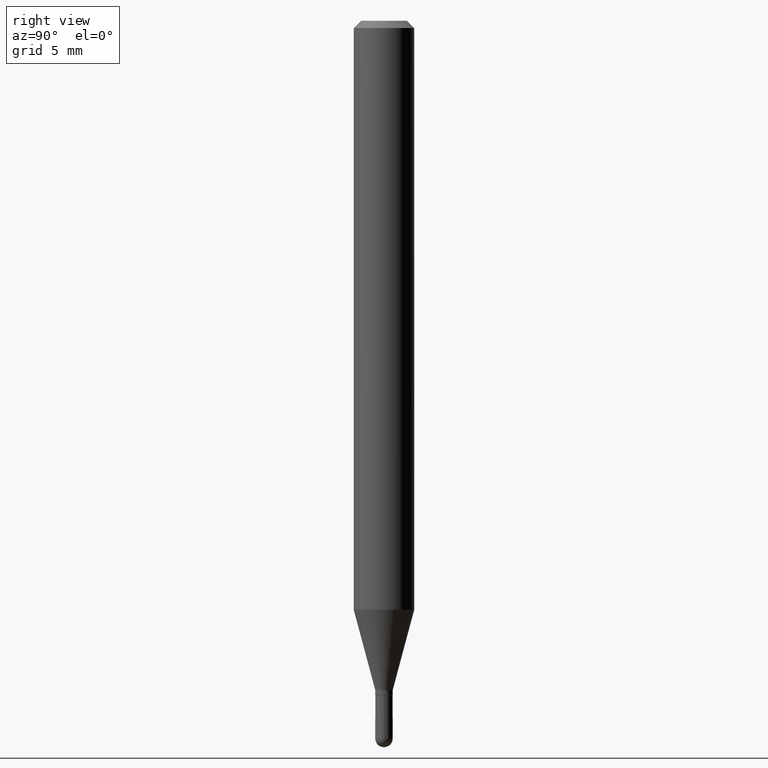
[diagram: clean part render]
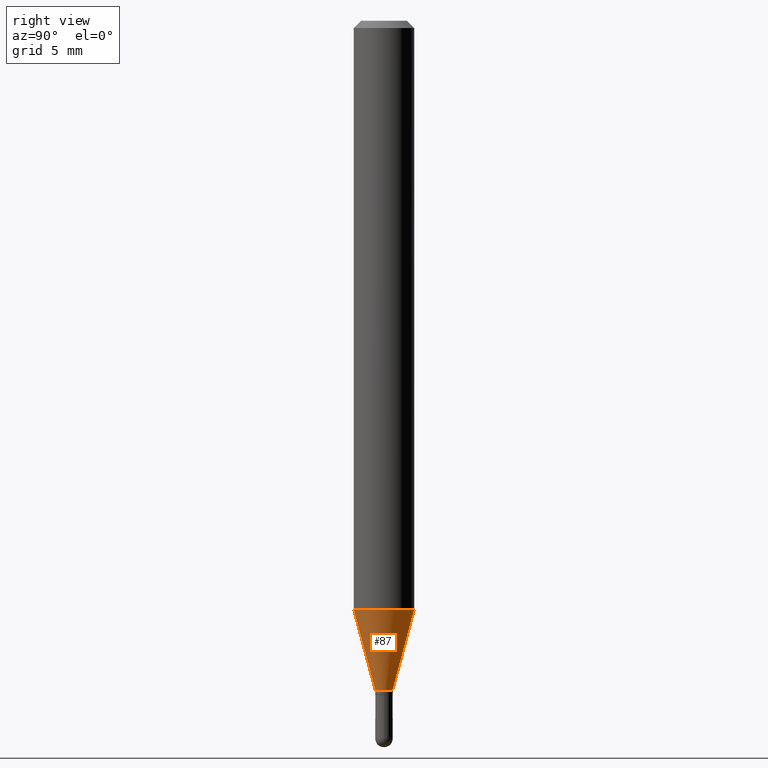
[diagram: same view with one face highlighted and labeled with its STEP entity id]
A machine part, right view. The second image highlights one B-rep face of the part: STEP entity #87.
In plain terms, the highlighted conical surface has half-angle 15 deg.
Its self-contained STEP definition (entity closure, byte-faithful):
#27 = EDGE_CURVE ( 'NONE', #442, #256, #80, .T. ) ;
#67 = CARTESIAN_POINT ( 'NONE',  ( 1.278976924368512546E-16, 0.01799999999999509631, -1.382000000000000117 ) ) ;
#72 = DIRECTION ( 'NONE',  ( -6.982962677686265133E-15, -1.000000000000000000, 0.000000000000000000 ) ) ;
#73 = LINE ( 'NONE', #67, #485 ) ;
#77 = ORIENTED_EDGE ( 'NONE', *, *, #95, .T. ) ;
#80 = CIRCLE ( 'NONE', #378, 0.06250000000000000000 ) ;
#87 = ADVANCED_FACE ( 'NONE', ( #493 ), #130, .T. ) ;
#95 = EDGE_CURVE ( 'NONE', #166, #256, #73, .T. ) ;
#100 = LINE ( 'NONE', #257, #434 ) ;
#103 = DIRECTION ( 'NONE',  ( -6.982962677686265922E-15, -1.000000000000000000, 4.370956789862821150E-15 ) ) ;
#112 = CIRCLE ( 'NONE', #483, 0.01799999999999992231 ) ;
#123 = CARTESIAN_POINT ( 'NONE',  ( 4.440892098500920998E-16, 0.06249999999999573952, -1.215923739063185627 ) ) ;
#130 = CONICAL_SURFACE ( 'NONE', #205, 0.01799999999999992231, 0.2617993877991502960 ) ;
#158 = DIRECTION ( 'NONE',  ( -2.445452881351750103E-29, 3.491504144110940427E-15, 1.000000000000000000 ) ) ;
#166 = VERTEX_POINT ( 'NONE', #192 ) ;
#169 = CARTESIAN_POINT ( 'NONE',  ( -1.256933281983184281E-16, -0.01800000000000474831, -1.382000000000000117 ) ) ;
#192 = CARTESIAN_POINT ( 'NONE',  ( 2.859934511434718867E-16, 0.01799999999999509631, -1.382000000000000117 ) ) ;
#205 = AXIS2_PLACEMENT_3D ( 'NONE', #503, #454, #72 ) ;
#227 = DIRECTION ( 'NONE',  ( -1.807323732225330139E-15, -0.2588190451025181860, 0.9659258262890689783 ) ) ;
#244 = CARTESIAN_POINT ( 'NONE',  ( 2.973484211196059892E-29, -4.245402773861981579E-15, -1.215923739063185405 ) ) ;
#245 = CARTESIAN_POINT ( 'NONE',  ( 3.379615882028119036E-29, -4.825258727161319601E-15, -1.382000000000000117 ) ) ;
#256 = VERTEX_POINT ( 'NONE', #123 ) ;
#257 = CARTESIAN_POINT ( 'NONE',  ( -1.256933281983184281E-16, -0.01800000000000474831, -1.382000000000000117 ) ) ;
#308 = EDGE_CURVE ( 'NONE', #317, #166, #112, .T. ) ;
#317 = VERTEX_POINT ( 'NONE', #169 ) ;
#336 = ORIENTED_EDGE ( 'NONE', *, *, #308, .T. ) ;
#363 = CARTESIAN_POINT ( 'NONE',  ( -4.364351673553620378E-16, -0.06250000000000426048, -1.215923739063185183 ) ) ;
#378 = AXIS2_PLACEMENT_3D ( 'NONE', #244, #158, #103 ) ;
#390 = ORIENTED_EDGE ( 'NONE', *, *, #484, .F. ) ;
#392 = DIRECTION ( 'NONE',  ( -6.982962677686265133E-15, -1.000000000000000000, 0.000000000000000000 ) ) ;
#393 = DIRECTION ( 'NONE',  ( -2.445452881351750103E-29, 3.491504144110940427E-15, 1.000000000000000000 ) ) ;
#404 = EDGE_LOOP ( 'NONE', ( #336, #77, #473, #390 ) ) ;
#434 = VECTOR ( 'NONE', #227, 39.37007874015748143 ) ;
#442 = VERTEX_POINT ( 'NONE', #363 ) ;
#454 = DIRECTION ( 'NONE',  ( -2.445452881351750103E-29, 3.491504144110940427E-15, 1.000000000000000000 ) ) ;
#473 = ORIENTED_EDGE ( 'NONE', *, *, #27, .F. ) ;
#483 = AXIS2_PLACEMENT_3D ( 'NONE', #245, #393, #392 ) ;
#484 = EDGE_CURVE ( 'NONE', #317, #442, #100, .T. ) ;
#485 = VECTOR ( 'NONE', #501, 39.37007874015748143 ) ;
#493 = FACE_OUTER_BOUND ( 'NONE', #404, .T. ) ;
#501 = DIRECTION ( 'NONE',  ( 1.839019923739600315E-15, 0.2588190451025249583, 0.9659258262890670910 ) ) ;
#503 = CARTESIAN_POINT ( 'NONE',  ( 3.379615882028119036E-29, -4.825258727161319601E-15, -1.382000000000000117 ) ) ;